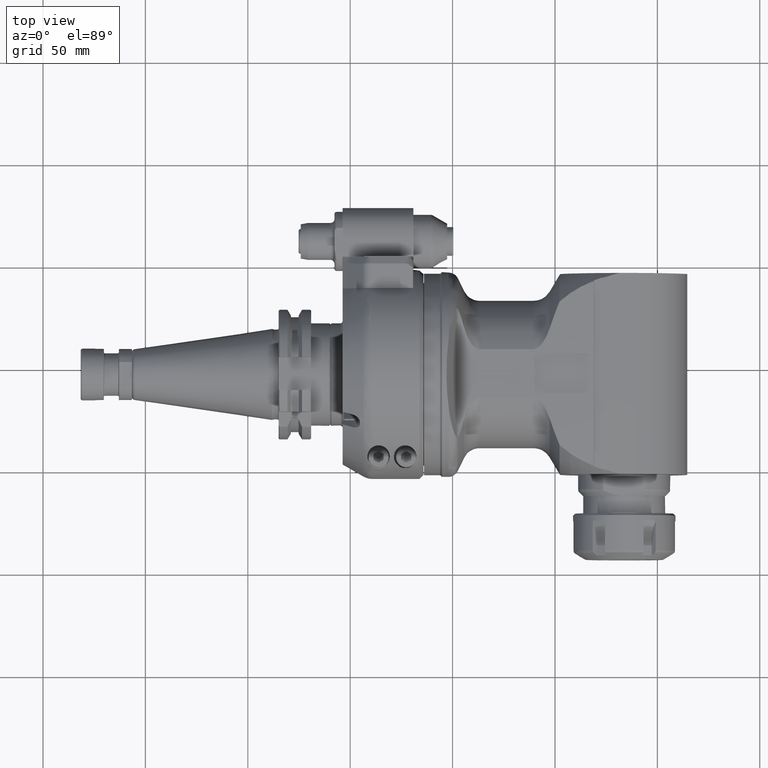
[diagram: clean part render]
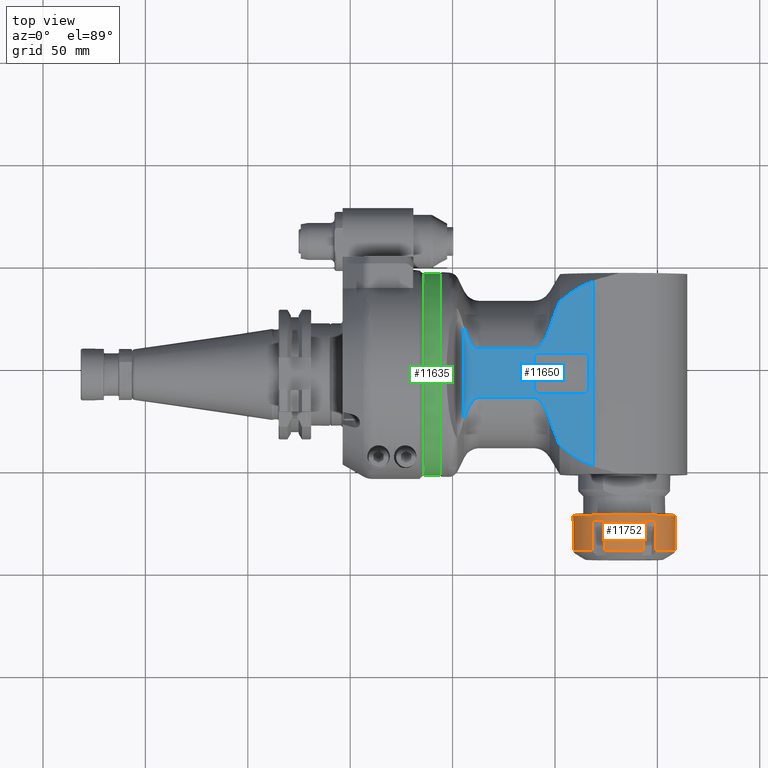
[diagram: same view with three faces highlighted in distinct colors, each labeled with its STEP entity id]
A machine part, top view with three faces highlighted in distinct colors.
Their STEP definitions:

[orange] entity #11752 — the highlighted cylindrical surface (bore or boss wall) has radius 25 mm, axis along (0, -1, -0).
#517=B_SPLINE_CURVE_WITH_KNOTS('',3,(#22286,#22287,#22288,#22289,#22290,
#22291,#22292,#22293,#22294,#22295),.UNSPECIFIED.,.F.,.F.,(4,2,2,2,4),(1.2833686320513,
1.29546874107952,1.61589836926193,1.93632799744434,1.94842810647265),
 .UNSPECIFIED.);
#518=B_SPLINE_CURVE_WITH_KNOTS('',3,(#22303,#22304,#22305,#22306,#22307,
#22308,#22309,#22310,#22311,#22312),.UNSPECIFIED.,.F.,.F.,(4,2,2,2,4),(1.2833686320532,
1.2954687410803,1.61589836926291,1.93632799744552,1.94842810647471),
 .UNSPECIFIED.);
#519=B_SPLINE_CURVE_WITH_KNOTS('',3,(#22320,#22321,#22322,#22323,#22324,
#22325,#22326,#22327,#22328,#22329),.UNSPECIFIED.,.F.,.F.,(4,2,2,2,4),(1.28336863205111,
1.2954687410803,1.61589836926291,1.93632799744551,1.94842810647262),
 .UNSPECIFIED.);
#520=B_SPLINE_CURVE_WITH_KNOTS('',3,(#22337,#22338,#22339,#22340,#22341,
#22342),.UNSPECIFIED.,.F.,.F.,(4,2,4),(-1.94842810647258,-1.93632799744435,
-1.61589836926194),.UNSPECIFIED.);
#521=B_SPLINE_CURVE_WITH_KNOTS('',3,(#22345,#22346,#22347,#22348,#22349,
#22350),.UNSPECIFIED.,.F.,.F.,(4,2,4),(-1.61589836926194,-1.29546874107953,
-1.28336863205122),.UNSPECIFIED.);
#522=B_SPLINE_CURVE_WITH_KNOTS('',3,(#22358,#22359,#22360,#22361,#22362,
#22363,#22364,#22365,#22366,#22367),.UNSPECIFIED.,.F.,.F.,(4,2,2,2,4),(-1.9484281064747,
-1.93632799744552,-1.61589836926291,-1.2954687410803,-1.28336863205338),
 .UNSPECIFIED.);
#523=B_SPLINE_CURVE_WITH_KNOTS('',3,(#22375,#22376,#22377,#22378,#22379,
#22380,#22381,#22382,#22383,#22384),.UNSPECIFIED.,.F.,.F.,(4,2,2,2,4),(-1.94842810647263,
-1.93632799744553,-1.61589836926292,-1.29546874108031,-1.2833686320513),
 .UNSPECIFIED.);
#1156=LINE('',#22297,#2012);
#1157=LINE('',#22301,#2013);
#1158=LINE('',#22314,#2014);
#1159=LINE('',#22318,#2015);
#1160=LINE('',#22331,#2016);
#1161=LINE('',#22335,#2017);
#1162=LINE('',#22343,#2018);
#1163=LINE('',#22352,#2019);
#1164=LINE('',#22356,#2020);
#1165=LINE('',#22369,#2021);
#1166=LINE('',#22373,#2022);
#1167=LINE('',#22386,#2023);
#1168=LINE('',#22389,#2024);
#2012=VECTOR('',#14106,14.29830773003);
#2013=VECTOR('',#14109,14.29830773003);
#2014=VECTOR('',#14110,14.29830773003);
#2015=VECTOR('',#14113,14.29830773003);
#2016=VECTOR('',#14114,14.29830773003);
#2017=VECTOR('',#14117,14.29830773003);
#2018=VECTOR('',#14118,25.);
#2019=VECTOR('',#14119,14.29830773003);
#2020=VECTOR('',#14122,14.29830773003);
#2021=VECTOR('',#14123,14.29830773003);
#2022=VECTOR('',#14126,14.29830773003);
#2023=VECTOR('',#14127,14.29830773003);
#2024=VECTOR('',#14130,14.29830773003);
#2591=CYLINDRICAL_SURFACE('',#12531,25.);
#2853=FACE_OUTER_BOUND('',#3525,.T.);
#3525=EDGE_LOOP('',(#8741,#8742,#8743,#8744,#8745,#8746,#8747,#8748,#8749,
#8750,#8751,#8752,#8753,#8754,#8755,#8756,#8757,#8758,#8759,#8760,#8761,
#8762,#8763,#8764,#8765,#8766,#8767,#8768));
#4190=CIRCLE('',#12530,25.);
#4191=CIRCLE('',#12532,25.);
#4192=CIRCLE('',#12533,25.);
#4193=CIRCLE('',#12534,25.);
#4194=CIRCLE('',#12535,25.);
#4195=CIRCLE('',#12536,25.);
#4196=CIRCLE('',#12537,25.);
#5004=VERTEX_POINT('',#22280);
#5005=VERTEX_POINT('',#22284);
#5006=VERTEX_POINT('',#22285);
#5007=VERTEX_POINT('',#22296);
#5008=VERTEX_POINT('',#22298);
#5009=VERTEX_POINT('',#22300);
#5010=VERTEX_POINT('',#22302);
#5011=VERTEX_POINT('',#22313);
#5012=VERTEX_POINT('',#22315);
#5013=VERTEX_POINT('',#22317);
#5014=VERTEX_POINT('',#22319);
#5015=VERTEX_POINT('',#22330);
#5016=VERTEX_POINT('',#22332);
#5017=VERTEX_POINT('',#22334);
#5018=VERTEX_POINT('',#22336);
#5019=VERTEX_POINT('',#22344);
#5020=VERTEX_POINT('',#22351);
#5021=VERTEX_POINT('',#22353);
#5022=VERTEX_POINT('',#22355);
#5023=VERTEX_POINT('',#22357);
#5024=VERTEX_POINT('',#22368);
#5025=VERTEX_POINT('',#22370);
#5026=VERTEX_POINT('',#22372);
#5027=VERTEX_POINT('',#22374);
#5028=VERTEX_POINT('',#22385);
#5029=VERTEX_POINT('',#22387);
#6381=EDGE_CURVE('',#5004,#5004,#4190,.T.);
#6383=EDGE_CURVE('',#5005,#5006,#517,.T.);
#6384=EDGE_CURVE('',#5005,#5007,#1156,.T.);
#6385=EDGE_CURVE('',#5008,#5007,#4191,.T.);
#6386=EDGE_CURVE('',#5008,#5009,#1157,.T.);
#6387=EDGE_CURVE('',#5010,#5009,#518,.T.);
#6388=EDGE_CURVE('',#5010,#5011,#1158,.T.);
#6389=EDGE_CURVE('',#5012,#5011,#4192,.T.);
#6390=EDGE_CURVE('',#5012,#5013,#1159,.T.);
#6391=EDGE_CURVE('',#5014,#5013,#519,.T.);
#6392=EDGE_CURVE('',#5014,#5015,#1160,.T.);
#6393=EDGE_CURVE('',#5016,#5015,#4193,.T.);
#6394=EDGE_CURVE('',#5016,#5017,#1161,.T.);
#6395=EDGE_CURVE('',#5018,#5017,#520,.F.);
#6396=EDGE_CURVE('',#5018,#5004,#1162,.T.);
#6397=EDGE_CURVE('',#5019,#5018,#521,.F.);
#6398=EDGE_CURVE('',#5019,#5020,#1163,.T.);
#6399=EDGE_CURVE('',#5021,#5020,#4194,.T.);
#6400=EDGE_CURVE('',#5021,#5022,#1164,.T.);
#6401=EDGE_CURVE('',#5022,#5023,#522,.T.);
#6402=EDGE_CURVE('',#5023,#5024,#1165,.T.);
#6403=EDGE_CURVE('',#5025,#5024,#4195,.T.);
#6404=EDGE_CURVE('',#5025,#5026,#1166,.T.);
#6405=EDGE_CURVE('',#5026,#5027,#523,.T.);
#6406=EDGE_CURVE('',#5027,#5028,#1167,.T.);
#6407=EDGE_CURVE('',#5029,#5028,#4196,.T.);
#6408=EDGE_CURVE('',#5029,#5006,#1168,.T.);
#8741=ORIENTED_EDGE('',*,*,#6383,.F.);
#8742=ORIENTED_EDGE('',*,*,#6384,.T.);
#8743=ORIENTED_EDGE('',*,*,#6385,.F.);
#8744=ORIENTED_EDGE('',*,*,#6386,.T.);
#8745=ORIENTED_EDGE('',*,*,#6387,.F.);
#8746=ORIENTED_EDGE('',*,*,#6388,.T.);
#8747=ORIENTED_EDGE('',*,*,#6389,.F.);
#8748=ORIENTED_EDGE('',*,*,#6390,.T.);
#8749=ORIENTED_EDGE('',*,*,#6391,.F.);
#8750=ORIENTED_EDGE('',*,*,#6392,.T.);
#8751=ORIENTED_EDGE('',*,*,#6393,.F.);
#8752=ORIENTED_EDGE('',*,*,#6394,.T.);
#8753=ORIENTED_EDGE('',*,*,#6395,.F.);
#8754=ORIENTED_EDGE('',*,*,#6396,.T.);
#8755=ORIENTED_EDGE('',*,*,#6381,.F.);
#8756=ORIENTED_EDGE('',*,*,#6396,.F.);
#8757=ORIENTED_EDGE('',*,*,#6397,.F.);
#8758=ORIENTED_EDGE('',*,*,#6398,.T.);
#8759=ORIENTED_EDGE('',*,*,#6399,.F.);
#8760=ORIENTED_EDGE('',*,*,#6400,.T.);
#8761=ORIENTED_EDGE('',*,*,#6401,.T.);
#8762=ORIENTED_EDGE('',*,*,#6402,.T.);
#8763=ORIENTED_EDGE('',*,*,#6403,.F.);
#8764=ORIENTED_EDGE('',*,*,#6404,.T.);
#8765=ORIENTED_EDGE('',*,*,#6405,.T.);
#8766=ORIENTED_EDGE('',*,*,#6406,.T.);
#8767=ORIENTED_EDGE('',*,*,#6407,.F.);
#8768=ORIENTED_EDGE('',*,*,#6408,.T.);
#11752=ADVANCED_FACE('',(#2853),#2591,.T.);
#12530=AXIS2_PLACEMENT_3D('',#22281,#14101,#14102);
#12531=AXIS2_PLACEMENT_3D('',#22283,#14104,#14105);
#12532=AXIS2_PLACEMENT_3D('',#22299,#14107,#14108);
#12533=AXIS2_PLACEMENT_3D('',#22316,#14111,#14112);
#12534=AXIS2_PLACEMENT_3D('',#22333,#14115,#14116);
#12535=AXIS2_PLACEMENT_3D('',#22354,#14120,#14121);
#12536=AXIS2_PLACEMENT_3D('',#22371,#14124,#14125);
#12537=AXIS2_PLACEMENT_3D('',#22388,#14128,#14129);
#14101=DIRECTION('center_axis',(0.,1.,0.));
#14102=DIRECTION('ref_axis',(1.,0.,0.));
#14104=DIRECTION('center_axis',(0.,-1.,0.));
#14105=DIRECTION('ref_axis',(-1.,0.,0.));
#14106=DIRECTION('',(2.981651042246E-14,-1.,0.));
#14107=DIRECTION('center_axis',(0.,-1.,0.));
#14108=DIRECTION('ref_axis',(-0.61594757975162,0.,0.787787140665625));
#14109=DIRECTION('',(-1.987767361498E-14,1.,-1.217507508918E-14));
#14110=DIRECTION('',(0.,-1.,-3.677369618771E-14));
#14111=DIRECTION('center_axis',(0.,-1.,0.));
#14112=DIRECTION('ref_axis',(0.37426988671541,0.,0.927319821797223));
#14113=DIRECTION('',(-1.590213889198E-14,1.,1.142966232861E-14));
#14114=DIRECTION('',(-2.782874306096E-14,-1.,-2.782874306096E-14));
#14115=DIRECTION('center_axis',(0.,-1.,0.));
#14116=DIRECTION('ref_axis',(0.99021746646695,0.,0.139532681131607));
#14117=DIRECTION('',(0.,1.,1.745508214315E-14));
#14118=DIRECTION('',(0.,1.,0.));
#14119=DIRECTION('',(-3.577981250697E-14,-1.,4.472476563371E-14));
#14120=DIRECTION('center_axis',(0.,-1.,0.));
#14121=DIRECTION('ref_axis',(0.61594757975162,0.,-0.787787140665625));
#14122=DIRECTION('',(3.180427778397E-14,1.,0.));
#14123=DIRECTION('',(0.,-1.,4.248852735201E-14));
#14124=DIRECTION('center_axis',(0.,-1.,0.));
#14125=DIRECTION('ref_axis',(-0.374269886715289,0.,-0.927319821797272));
#14126=DIRECTION('',(1.590213889198E-14,1.,0.));
#14127=DIRECTION('',(2.782874306097E-14,-1.,2.534403385909E-14));
#14128=DIRECTION('center_axis',(0.,-1.,0.));
#14129=DIRECTION('ref_axis',(-0.99021746646695,0.,-0.139532681131607));
#14130=DIRECTION('',(0.,1.,0.));
#22280=CARTESIAN_POINT('',(303.063097,-69.,-1.680420176007E-14));
#22281=CARTESIAN_POINT('Origin',(278.063097,-69.,-1.214011585688E-14));
#22283=CARTESIAN_POINT('Origin',(278.063097,-77.5,-1.308380542781E-14));
#22284=CARTESIAN_POINT('',(253.3076603383,-71.83566686619,3.48831702829));
#22285=CARTESIAN_POINT('',(253.3076603383,-71.83566686619,-3.488317028291));
#22286=CARTESIAN_POINT('Ctrl Pts',(253.307660338326,-71.8356668661849,3.48831702828736));
#22287=CARTESIAN_POINT('Ctrl Pts',(253.301669607681,-71.8272006773054,3.44580278665227));
#22288=CARTESIAN_POINT('Ctrl Pts',(253.295782864721,-71.8189000400939,3.40323372672939));
#22289=CARTESIAN_POINT('Ctrl Pts',(253.13690397534,-71.595336993535,2.23204483712164));
#22290=CARTESIAN_POINT('Ctrl Pts',(253.063097,-71.5,1.06809876060802));
#22291=CARTESIAN_POINT('Ctrl Pts',(253.063097,-71.5,-1.06809876060804));
#22292=CARTESIAN_POINT('Ctrl Pts',(253.13690397534,-71.595336993535,-2.23204483712166));
#22293=CARTESIAN_POINT('Ctrl Pts',(253.295782864722,-71.8189000400939,-3.40323372672973));
#22294=CARTESIAN_POINT('Ctrl Pts',(253.301669607681,-71.8272006773055,-3.44580278665291));
#22295=CARTESIAN_POINT('Ctrl Pts',(253.307660338326,-71.8356668661851,-3.4883170282883));
#22296=CARTESIAN_POINT('',(253.3076603383,-86.13397459622,3.488317028291));
#22297=CARTESIAN_POINT('',(253.3076603383,-71.83566686618,3.488317028291));
#22298=CARTESIAN_POINT('',(262.6644075062,-86.13397459622,19.69467851664));
#22299=CARTESIAN_POINT('Origin',(278.063097,-86.13397459622,-1.404236916689E-14));
#22300=CARTESIAN_POINT('',(262.6644075062,-71.83566686619,19.69467851664));
#22301=CARTESIAN_POINT('',(262.6644075062,-86.13397459622,19.69467851664));
#22302=CARTESIAN_POINT('',(268.7063498321,-71.83566686619,23.18299554493));
#22303=CARTESIAN_POINT('Ctrl Pts',(268.706349832104,-71.8356668661778,23.1829955449262));
#22304=CARTESIAN_POINT('Ctrl Pts',(268.666536053507,-71.8272006772991,23.166926549036));
#22305=CARTESIAN_POINT('Ctrl Pts',(268.626726794722,-71.8189000400883,23.1507400880245));
#22306=CARTESIAN_POINT('Ctrl Pts',(267.533008019004,-71.5953369935301,22.7027387975508));
#22307=CARTESIAN_POINT('Ctrl Pts',(266.488097660437,-71.4999999999951,22.1846844749151));
#22308=CARTESIAN_POINT('Ctrl Pts',(264.638096339562,-71.4999999999951,21.1165857143063));
#22309=CARTESIAN_POINT('Ctrl Pts',(263.666992956335,-71.5953369935301,20.4706939604277));
#22310=CARTESIAN_POINT('Ctrl Pts',(262.732153069992,-71.8189000400897,19.7475063612923));
#22311=CARTESIAN_POINT('Ctrl Pts',(262.698230554161,-71.8272006773019,19.7211237623803));
#22312=CARTESIAN_POINT('Ctrl Pts',(262.664407506202,-71.8356668661822,19.6946785166348));
#22313=CARTESIAN_POINT('',(268.7063498321,-86.13397459622,23.18299554493));
#22314=CARTESIAN_POINT('',(268.7063498321,-71.83566686619,23.18299554493));
#22315=CARTESIAN_POINT('',(287.4198441679,-86.13397459622,23.18299554493));
#22316=CARTESIAN_POINT('Origin',(278.063097,-86.13397459622,-1.404236916689E-14));
#22317=CARTESIAN_POINT('',(287.4198441679,-71.83566686619,23.18299554493));
#22318=CARTESIAN_POINT('',(287.4198441679,-86.13397459622,23.18299554493));
#22319=CARTESIAN_POINT('',(293.4617864938,-71.83566686619,19.69467851664));
#22320=CARTESIAN_POINT('Ctrl Pts',(293.461786493798,-71.8356668661822,19.6946785166348));
#22321=CARTESIAN_POINT('Ctrl Pts',(293.427963445839,-71.827200677302,19.7211237623803));
#22322=CARTESIAN_POINT('Ctrl Pts',(293.394040930008,-71.8189000400897,19.7475063612923));
#22323=CARTESIAN_POINT('Ctrl Pts',(292.459201043665,-71.5953369935301,20.4706939604277));
#22324=CARTESIAN_POINT('Ctrl Pts',(291.488097660438,-71.4999999999951,21.1165857143063));
#22325=CARTESIAN_POINT('Ctrl Pts',(289.638096339563,-71.4999999999951,22.1846844749151));
#22326=CARTESIAN_POINT('Ctrl Pts',(288.593185980996,-71.5953369935301,22.7027387975508));
#22327=CARTESIAN_POINT('Ctrl Pts',(287.499467205278,-71.8189000400884,23.1507400880245));
#22328=CARTESIAN_POINT('Ctrl Pts',(287.459657946493,-71.8272006772991,23.166926549036));
#22329=CARTESIAN_POINT('Ctrl Pts',(287.419844167896,-71.8356668661778,23.1829955449263));
#22330=CARTESIAN_POINT('',(293.4617864938,-86.13397459622,19.69467851664));
#22331=CARTESIAN_POINT('',(293.4617864938,-71.83566686618,19.69467851664));
#22332=CARTESIAN_POINT('',(302.8185336617,-86.13397459622,3.488317028291));
#22333=CARTESIAN_POINT('Origin',(278.063097,-86.13397459622,-1.404236916689E-14));
#22334=CARTESIAN_POINT('',(302.8185336617,-71.83566686619,3.48831702829));
#22335=CARTESIAN_POINT('',(302.8185336617,-86.13397459622,3.488317028291));
#22336=CARTESIAN_POINT('',(303.063097,-71.5,-1.13948766065655E-14));
#22337=CARTESIAN_POINT('Ctrl Pts',(302.818533661674,-71.8356668661849,3.48831702828738));
#22338=CARTESIAN_POINT('Ctrl Pts',(302.824524392319,-71.8272006773054,3.44580278665229));
#22339=CARTESIAN_POINT('Ctrl Pts',(302.830411135279,-71.8189000400938,3.40323372672941));
#22340=CARTESIAN_POINT('Ctrl Pts',(302.98929002466,-71.5953369935349,2.23204483712165));
#22341=CARTESIAN_POINT('Ctrl Pts',(303.063097,-71.5,1.06809876060802));
#22342=CARTESIAN_POINT('Ctrl Pts',(303.063097,-71.5,-1.22124532708767E-14));
#22343=CARTESIAN_POINT('',(303.063097,-77.5,-1.00221884299416E-14));
#22344=CARTESIAN_POINT('',(302.8185336617,-71.83566686619,-3.488317028291));
#22345=CARTESIAN_POINT('Ctrl Pts',(303.063097,-71.5,-1.30451205393456E-14));
#22346=CARTESIAN_POINT('Ctrl Pts',(303.063097,-71.5,-1.06809876060805));
#22347=CARTESIAN_POINT('Ctrl Pts',(302.98929002466,-71.5953369935349,-2.23204483712168));
#22348=CARTESIAN_POINT('Ctrl Pts',(302.830411135279,-71.8189000400939,-3.40323372672975));
#22349=CARTESIAN_POINT('Ctrl Pts',(302.824524392319,-71.8272006773055,-3.44580278665293));
#22350=CARTESIAN_POINT('Ctrl Pts',(302.818533661674,-71.8356668661851,-3.48831702828833));
#22351=CARTESIAN_POINT('',(302.8185336617,-86.13397459622,-3.488317028291));
#22352=CARTESIAN_POINT('',(302.8185336617,-71.83566686619,-3.488317028291));
#22353=CARTESIAN_POINT('',(293.4617864938,-86.13397459622,-19.69467851664));
#22354=CARTESIAN_POINT('Origin',(278.063097,-86.13397459622,-1.404236916689E-14));
#22355=CARTESIAN_POINT('',(293.4617864938,-71.83566686619,-19.69467851664));
#22356=CARTESIAN_POINT('',(293.4617864938,-86.13397459622,-19.69467851664));
#22357=CARTESIAN_POINT('',(287.4198441679,-71.83566686618,-23.18299554493));
#22358=CARTESIAN_POINT('Ctrl Pts',(293.461786493798,-71.8356668661822,-19.6946785166349));
#22359=CARTESIAN_POINT('Ctrl Pts',(293.427963445839,-71.8272006773019,-19.7211237623804));
#22360=CARTESIAN_POINT('Ctrl Pts',(293.394040930008,-71.8189000400897,-19.7475063612923));
#22361=CARTESIAN_POINT('Ctrl Pts',(292.459201043665,-71.5953369935301,-20.4706939604277));
#22362=CARTESIAN_POINT('Ctrl Pts',(291.488097660438,-71.4999999999951,-21.1165857143064));
#22363=CARTESIAN_POINT('Ctrl Pts',(289.638096339563,-71.4999999999951,-22.1846844749151));
#22364=CARTESIAN_POINT('Ctrl Pts',(288.593185980996,-71.5953369935301,-22.7027387975509));
#22365=CARTESIAN_POINT('Ctrl Pts',(287.499467205278,-71.8189000400882,-23.1507400880243));
#22366=CARTESIAN_POINT('Ctrl Pts',(287.459657946495,-71.8272006772988,-23.1669265490356));
#22367=CARTESIAN_POINT('Ctrl Pts',(287.419844167898,-71.8356668661774,-23.1829955449256));
#22368=CARTESIAN_POINT('',(287.4198441679,-86.13397459622,-23.18299554493));
#22369=CARTESIAN_POINT('',(287.4198441679,-71.83566686618,-23.18299554493));
#22370=CARTESIAN_POINT('',(268.7063498321,-86.13397459622,-23.18299554493));
#22371=CARTESIAN_POINT('Origin',(278.063097,-86.13397459622,-1.404236916689E-14));
#22372=CARTESIAN_POINT('',(268.7063498321,-71.83566686619,-23.18299554493));
#22373=CARTESIAN_POINT('',(268.7063498321,-86.13397459622,-23.18299554493));
#22374=CARTESIAN_POINT('',(262.6644075062,-71.83566686618,-19.69467851664));
#22375=CARTESIAN_POINT('Ctrl Pts',(268.706349832104,-71.8356668661777,-23.1829955449263));
#22376=CARTESIAN_POINT('Ctrl Pts',(268.666536053507,-71.827200677299,-23.1669265490361));
#22377=CARTESIAN_POINT('Ctrl Pts',(268.626726794722,-71.8189000400883,-23.1507400880245));
#22378=CARTESIAN_POINT('Ctrl Pts',(267.533008019004,-71.59533699353,-22.7027387975509));
#22379=CARTESIAN_POINT('Ctrl Pts',(266.488097660437,-71.4999999999951,-22.1846844749151));
#22380=CARTESIAN_POINT('Ctrl Pts',(264.638096339562,-71.4999999999951,-21.1165857143064));
#22381=CARTESIAN_POINT('Ctrl Pts',(263.666992956335,-71.59533699353,-20.4706939604278));
#22382=CARTESIAN_POINT('Ctrl Pts',(262.732153069993,-71.8189000400895,-19.7475063612927));
#22383=CARTESIAN_POINT('Ctrl Pts',(262.698230554162,-71.8272006773017,-19.7211237623811));
#22384=CARTESIAN_POINT('Ctrl Pts',(262.664407506204,-71.8356668661818,-19.694678516636));
#22385=CARTESIAN_POINT('',(262.6644075062,-86.13397459622,-19.69467851664));
#22386=CARTESIAN_POINT('',(262.6644075062,-71.83566686618,-19.69467851664));
#22387=CARTESIAN_POINT('',(253.3076603383,-86.13397459622,-3.488317028291));
#22388=CARTESIAN_POINT('Origin',(278.063097,-86.13397459622,-1.404236916689E-14));
#22389=CARTESIAN_POINT('',(253.3076603383,-86.13397459622,-3.488317028291));

[blue] entity #11650 — the highlighted planar face has unit normal (-0, 0, -1).
#255=(
BOUNDED_CURVE()
B_SPLINE_CURVE(2,(#16769,#16770,#16771),.UNSPECIFIED.,.F.,.F.)
B_SPLINE_CURVE_WITH_KNOTS((3,3),(-7.0566883781188,-6.95774973782874),
 .UNSPECIFIED.)
CURVE()
GEOMETRIC_REPRESENTATION_ITEM()
RATIONAL_B_SPLINE_CURVE((1.00375094347923,1.00425302240949,1.00474028515135))
REPRESENTATION_ITEM('')
);
#256=(
BOUNDED_CURVE()
B_SPLINE_CURVE(2,(#16776,#16777,#16778),.UNSPECIFIED.,.F.,.F.)
B_SPLINE_CURVE_WITH_KNOTS((3,3),(6.16316429996222,6.1904248157078),
 .UNSPECIFIED.)
CURVE()
GEOMETRIC_REPRESENTATION_ITEM()
RATIONAL_B_SPLINE_CURVE((1.11577564848434,1.11460476666033,1.11342126184614))
REPRESENTATION_ITEM('')
);
#257=(
BOUNDED_CURVE()
B_SPLINE_CURVE(2,(#16791,#16792,#16793),.UNSPECIFIED.,.F.,.F.)
B_SPLINE_CURVE_WITH_KNOTS((3,3),(2.5215742486305,4.06301752668661),
 .UNSPECIFIED.)
CURVE()
GEOMETRIC_REPRESENTATION_ITEM()
RATIONAL_B_SPLINE_CURVE((1.36765630309663,1.4577699631041,1.52066742170751))
REPRESENTATION_ITEM('')
);
#258=(
BOUNDED_CURVE()
B_SPLINE_CURVE(2,(#16795,#16796,#16797),.UNSPECIFIED.,.F.,.F.)
B_SPLINE_CURVE_WITH_KNOTS((3,3),(0.775030712287538,1.18947311921431),
 .UNSPECIFIED.)
CURVE()
GEOMETRIC_REPRESENTATION_ITEM()
RATIONAL_B_SPLINE_CURVE((1.08266443650082,1.10336027159058,1.12255210103294))
REPRESENTATION_ITEM('')
);
#259=(
BOUNDED_CURVE()
B_SPLINE_CURVE(2,(#16799,#16800,#16801),.UNSPECIFIED.,.F.,.F.)
B_SPLINE_CURVE_WITH_KNOTS((3,3),(0.39307773059177,0.696187792189114),
 .UNSPECIFIED.)
CURVE()
GEOMETRIC_REPRESENTATION_ITEM()
RATIONAL_B_SPLINE_CURVE((1.03857172074225,1.05300594660315,1.06676546580063))
REPRESENTATION_ITEM('')
);
#260=(
BOUNDED_CURVE()
B_SPLINE_CURVE(2,(#16802,#16803,#16804),.UNSPECIFIED.,.F.,.F.)
B_SPLINE_CURVE_WITH_KNOTS((3,3),(0.107918262111207,0.355594283058807),
 .UNSPECIFIED.)
CURVE()
GEOMETRIC_REPRESENTATION_ITEM()
RATIONAL_B_SPLINE_CURVE((1.00928612455467,1.01986753373372,1.03010664309034))
REPRESENTATION_ITEM('')
);
#261=(
BOUNDED_CURVE()
B_SPLINE_CURVE(2,(#16808,#16809,#16810),.UNSPECIFIED.,.F.,.F.)
B_SPLINE_CURVE_WITH_KNOTS((3,3),(6.95803843825647,7.05698155652156),
 .UNSPECIFIED.)
CURVE()
GEOMETRIC_REPRESENTATION_ITEM()
RATIONAL_B_SPLINE_CURVE((1.00474774792588,1.00426053459943,1.0037585049215))
REPRESENTATION_ITEM('')
);
#262=(
BOUNDED_CURVE()
B_SPLINE_CURVE(2,(#16812,#16813,#16814),.UNSPECIFIED.,.F.,.F.)
B_SPLINE_CURVE_WITH_KNOTS((3,3),(15.1725118771044,15.4201832348913),
 .UNSPECIFIED.)
CURVE()
GEOMETRIC_REPRESENTATION_ITEM()
RATIONAL_B_SPLINE_CURVE((1.03009681742218,1.01985780573126,1.00927649748294))
REPRESENTATION_ITEM('')
);
#263=(
BOUNDED_CURVE()
B_SPLINE_CURVE(2,(#16816,#16817,#16818),.UNSPECIFIED.,.F.,.F.)
B_SPLINE_CURVE_WITH_KNOTS((3,3),(13.0586360691569,13.3617396590739),
 .UNSPECIFIED.)
CURVE()
GEOMETRIC_REPRESENTATION_ITEM()
RATIONAL_B_SPLINE_CURVE((1.06675254216696,1.0529931866809,1.03855913239331))
REPRESENTATION_ITEM('')
);
#264=(
BOUNDED_CURVE()
B_SPLINE_CURVE(2,(#16820,#16821,#16822),.UNSPECIFIED.,.F.,.F.)
B_SPLINE_CURVE_WITH_KNOTS((3,3),(11.7660287057255,12.1804611856225),
 .UNSPECIFIED.)
CURVE()
GEOMETRIC_REPRESENTATION_ITEM()
RATIONAL_B_SPLINE_CURVE((1.12253550208667,1.10334395998691,1.08264843503662))
REPRESENTATION_ITEM('')
);
#265=(
BOUNDED_CURVE()
B_SPLINE_CURVE(2,(#16824,#16825,#16826),.UNSPECIFIED.,.F.,.F.)
B_SPLINE_CURVE_WITH_KNOTS((3,3),(11.1870091814929,12.7283913806283),
 .UNSPECIFIED.)
CURVE()
GEOMETRIC_REPRESENTATION_ITEM()
RATIONAL_B_SPLINE_CURVE((1.5206120536593,1.45771688517508,1.36760650623862))
REPRESENTATION_ITEM('')
);
#266=(
BOUNDED_CURVE()
B_SPLINE_CURVE(2,(#16854,#16855,#16856),.UNSPECIFIED.,.F.,.F.)
B_SPLINE_CURVE_WITH_KNOTS((3,3),(1.07864842205667,1.10590893779562),
 .UNSPECIFIED.)
CURVE()
GEOMETRIC_REPRESENTATION_ITEM()
RATIONAL_B_SPLINE_CURVE((1.11342126175273,1.11460476656667,1.11577564839043))
REPRESENTATION_ITEM('')
);
#411=B_SPLINE_CURVE_WITH_KNOTS('',3,(#16490,#16491,#16492,#16493,#16494,
#16495,#16496,#16497,#16498,#16499,#16500,#16501),.UNSPECIFIED.,.F.,.F.,
(4,2,2,2,2,4),(3.26256449606922,3.35979196488696,3.48380316096739,3.90334505683776,
4.48575870420334,4.52060177296934),.UNSPECIFIED.);
#423=B_SPLINE_CURVE_WITH_KNOTS('',3,(#16780,#16781,#16782,#16783,#16784,
#16785,#16786,#16787,#16788,#16789),.UNSPECIFIED.,.F.,.F.,(4,2,2,2,4),(3.59989156653281,
3.70972363098961,3.85021130199602,4.32170904660402,4.87230947984852),
 .UNSPECIFIED.);
#424=B_SPLINE_CURVE_WITH_KNOTS('',3,(#16828,#16829,#16830,#16831,#16832,
#16833,#16834,#16835,#16836,#16837),.UNSPECIFIED.,.F.,.F.,(4,2,2,2,4),(2.32747365321535,
2.87807408645728,3.34957183106157,3.49005950206689,3.59989156652281),
 .UNSPECIFIED.);
#425=B_SPLINE_CURVE_WITH_KNOTS('',3,(#16841,#16842,#16843,#16844,#16845,
#16846,#16847,#16848,#16849,#16850,#16851,#16852),.UNSPECIFIED.,.F.,.F.,
(4,2,2,2,2,4),(-4.52060177296844,-4.48575870420334,-3.90334505683776,-3.48380316096739,
-3.35979196488696,-3.26256449606922),.UNSPECIFIED.);
#763=FACE_BOUND('',#3406,.T.);
#877=LINE('',#16487,#1733);
#893=LINE('',#16806,#1749);
#894=LINE('',#16839,#1750);
#895=LINE('',#16857,#1751);
#896=LINE('',#16860,#1752);
#897=LINE('',#16864,#1753);
#898=LINE('',#16868,#1754);
#899=LINE('',#16872,#1755);
#1733=VECTOR('',#13477,26.67897826015);
#1749=VECTOR('',#13557,10.);
#1750=VECTOR('',#13558,26.67897826021);
#1751=VECTOR('',#13559,45.02224602415);
#1752=VECTOR('',#13560,15.5);
#1753=VECTOR('',#13563,22.5);
#1754=VECTOR('',#13566,15.5);
#1755=VECTOR('',#13569,22.5);
#2751=FACE_OUTER_BOUND('',#3405,.T.);
#3405=EDGE_LOOP('',(#7825,#7826,#7827,#7828,#7829,#7830,#7831,#7832,#7833,
#7834,#7835,#7836,#7837,#7838,#7839,#7840,#7841,#7842,#7843,#7844));
#3406=EDGE_LOOP('',(#7845,#7846,#7847,#7848,#7849,#7850,#7851,#7852));
#4131=CIRCLE('',#12389,2.);
#4132=CIRCLE('',#12390,2.);
#4133=CIRCLE('',#12391,2.);
#4134=CIRCLE('',#12392,2.);
#4586=VERTEX_POINT('',#16481);
#4588=VERTEX_POINT('',#16485);
#4589=VERTEX_POINT('',#16489);
#4650=VERTEX_POINT('',#16767);
#4651=VERTEX_POINT('',#16768);
#4652=VERTEX_POINT('',#16775);
#4653=VERTEX_POINT('',#16779);
#4654=VERTEX_POINT('',#16790);
#4655=VERTEX_POINT('',#16794);
#4656=VERTEX_POINT('',#16798);
#4657=VERTEX_POINT('',#16805);
#4658=VERTEX_POINT('',#16807);
#4659=VERTEX_POINT('',#16811);
#4660=VERTEX_POINT('',#16815);
#4661=VERTEX_POINT('',#16819);
#4662=VERTEX_POINT('',#16823);
#4663=VERTEX_POINT('',#16827);
#4664=VERTEX_POINT('',#16838);
#4665=VERTEX_POINT('',#16840);
#4666=VERTEX_POINT('',#16853);
#4667=VERTEX_POINT('',#16858);
#4668=VERTEX_POINT('',#16859);
#4669=VERTEX_POINT('',#16861);
#4670=VERTEX_POINT('',#16863);
#4671=VERTEX_POINT('',#16865);
#4672=VERTEX_POINT('',#16867);
#4673=VERTEX_POINT('',#16869);
#4674=VERTEX_POINT('',#16871);
#5870=EDGE_CURVE('',#4588,#4586,#877,.T.);
#5871=EDGE_CURVE('',#4586,#4589,#411,.T.);
#5943=EDGE_CURVE('',#4650,#4651,#255,.T.);
#5946=EDGE_CURVE('',#4589,#4652,#256,.T.);
#5947=EDGE_CURVE('',#4588,#4653,#423,.T.);
#5948=EDGE_CURVE('',#4654,#4653,#257,.T.);
#5949=EDGE_CURVE('',#4655,#4654,#258,.T.);
#5950=EDGE_CURVE('',#4656,#4655,#259,.T.);
#5951=EDGE_CURVE('',#4651,#4656,#260,.T.);
#5952=EDGE_CURVE('',#4657,#4650,#893,.T.);
#5953=EDGE_CURVE('',#4658,#4657,#261,.T.);
#5954=EDGE_CURVE('',#4659,#4658,#262,.T.);
#5955=EDGE_CURVE('',#4660,#4659,#263,.T.);
#5956=EDGE_CURVE('',#4661,#4660,#264,.T.);
#5957=EDGE_CURVE('',#4662,#4661,#265,.T.);
#5958=EDGE_CURVE('',#4662,#4663,#424,.T.);
#5959=EDGE_CURVE('',#4664,#4663,#894,.T.);
#5960=EDGE_CURVE('',#4665,#4664,#425,.T.);
#5961=EDGE_CURVE('',#4666,#4665,#266,.T.);
#5962=EDGE_CURVE('',#4652,#4666,#895,.T.);
#5963=EDGE_CURVE('',#4667,#4668,#896,.T.);
#5964=EDGE_CURVE('',#4668,#4669,#4131,.T.);
#5965=EDGE_CURVE('',#4669,#4670,#897,.T.);
#5966=EDGE_CURVE('',#4670,#4671,#4132,.T.);
#5967=EDGE_CURVE('',#4671,#4672,#898,.T.);
#5968=EDGE_CURVE('',#4672,#4673,#4133,.T.);
#5969=EDGE_CURVE('',#4673,#4674,#899,.T.);
#5970=EDGE_CURVE('',#4674,#4667,#4134,.T.);
#7825=ORIENTED_EDGE('',*,*,#5946,.F.);
#7826=ORIENTED_EDGE('',*,*,#5871,.F.);
#7827=ORIENTED_EDGE('',*,*,#5870,.F.);
#7828=ORIENTED_EDGE('',*,*,#5947,.T.);
#7829=ORIENTED_EDGE('',*,*,#5948,.F.);
#7830=ORIENTED_EDGE('',*,*,#5949,.F.);
#7831=ORIENTED_EDGE('',*,*,#5950,.F.);
#7832=ORIENTED_EDGE('',*,*,#5951,.F.);
#7833=ORIENTED_EDGE('',*,*,#5943,.F.);
#7834=ORIENTED_EDGE('',*,*,#5952,.F.);
#7835=ORIENTED_EDGE('',*,*,#5953,.F.);
#7836=ORIENTED_EDGE('',*,*,#5954,.F.);
#7837=ORIENTED_EDGE('',*,*,#5955,.F.);
#7838=ORIENTED_EDGE('',*,*,#5956,.F.);
#7839=ORIENTED_EDGE('',*,*,#5957,.F.);
#7840=ORIENTED_EDGE('',*,*,#5958,.T.);
#7841=ORIENTED_EDGE('',*,*,#5959,.F.);
#7842=ORIENTED_EDGE('',*,*,#5960,.F.);
#7843=ORIENTED_EDGE('',*,*,#5961,.F.);
#7844=ORIENTED_EDGE('',*,*,#5962,.F.);
#7845=ORIENTED_EDGE('',*,*,#5963,.T.);
#7846=ORIENTED_EDGE('',*,*,#5964,.T.);
#7847=ORIENTED_EDGE('',*,*,#5965,.T.);
#7848=ORIENTED_EDGE('',*,*,#5966,.T.);
#7849=ORIENTED_EDGE('',*,*,#5967,.T.);
#7850=ORIENTED_EDGE('',*,*,#5968,.T.);
#7851=ORIENTED_EDGE('',*,*,#5969,.T.);
#7852=ORIENTED_EDGE('',*,*,#5970,.T.);
#11360=PLANE('',#12388);
#11650=ADVANCED_FACE('',(#2751,#763),#11360,.F.);
#12388=AXIS2_PLACEMENT_3D('',#16774,#13555,#13556);
#12389=AXIS2_PLACEMENT_3D('',#16862,#13561,#13562);
#12390=AXIS2_PLACEMENT_3D('',#16866,#13564,#13565);
#12391=AXIS2_PLACEMENT_3D('',#16870,#13567,#13568);
#12392=AXIS2_PLACEMENT_3D('',#16873,#13570,#13571);
#13477=DIRECTION('',(-1.,0.,0.));
#13555=DIRECTION('center_axis',(0.,0.,-1.));
#13556=DIRECTION('ref_axis',(-1.,0.,0.));
#13557=DIRECTION('',(0.,-1.,0.));
#13558=DIRECTION('',(1.,0.,0.));
#13559=DIRECTION('',(0.,1.,0.));
#13560=DIRECTION('',(0.,-1.,0.));
#13561=DIRECTION('center_axis',(0.,0.,-1.));
#13562=DIRECTION('ref_axis',(1.,0.,0.));
#13563=DIRECTION('',(-1.,0.,0.));
#13564=DIRECTION('center_axis',(0.,0.,-1.));
#13565=DIRECTION('ref_axis',(0.,-1.,0.));
#13566=DIRECTION('',(0.,1.,0.));
#13567=DIRECTION('center_axis',(0.,0.,-1.));
#13568=DIRECTION('ref_axis',(-1.,0.,0.));
#13569=DIRECTION('',(1.,0.,0.));
#13570=DIRECTION('center_axis',(0.,0.,-1.));
#13571=DIRECTION('ref_axis',(0.,1.,0.));
#16481=CARTESIAN_POINT('',(207.1879662404,-11.8321595662,34.));
#16485=CARTESIAN_POINT('',(233.8669445005,-11.8321595662,34.));
#16487=CARTESIAN_POINT('',(233.8669445005,-11.8321595662,34.));
#16489=CARTESIAN_POINT('',(199.9375039441,-22.22403069258,34.));
#16490=CARTESIAN_POINT('Ctrl Pts',(207.1879662404,-11.8321595661992,34.));
#16491=CARTESIAN_POINT('Ctrl Pts',(206.863874677674,-11.8321595661992,34.));
#16492=CARTESIAN_POINT('Ctrl Pts',(206.48271510493,-11.9094141530462,34.));
#16493=CARTESIAN_POINT('Ctrl Pts',(205.793568991128,-12.1719558722867,34.));
#16494=CARTESIAN_POINT('Ctrl Pts',(205.372427555173,-12.4340633292095,34.));
#16495=CARTESIAN_POINT('Ctrl Pts',(203.953201733516,-13.5603738735786,34.));
#16496=CARTESIAN_POINT('Ctrl Pts',(203.008613998233,-14.9474573060366,34.));
#16497=CARTESIAN_POINT('Ctrl Pts',(201.374850143006,-17.860432723607,34.));
#16498=CARTESIAN_POINT('Ctrl Pts',(200.582986316568,-19.8279709388041,34.));
#16499=CARTESIAN_POINT('Ctrl Pts',(200.000606743342,-21.9803869181482,34.));
#16500=CARTESIAN_POINT('Ctrl Pts',(199.968608168858,-22.1021166285149,34.));
#16501=CARTESIAN_POINT('Ctrl Pts',(199.937503944106,-22.2240306925814,34.));
#16767=CARTESIAN_POINT('',(263.053097479116,-44.9805368840876,33.9999997132387));
#16768=CARTESIAN_POINT('',(261.7592494227,-44.54518184073,34.));
#16769=CARTESIAN_POINT('Ctrl Pts',(263.053097670176,-44.9805363271857,34.));
#16770=CARTESIAN_POINT('Ctrl Pts',(262.403027620066,-44.7621878193078,34.));
#16771=CARTESIAN_POINT('Ctrl Pts',(261.759249422742,-44.5451818407373,34.));
#16774=CARTESIAN_POINT('Origin',(238.1030186341,-45.,34.));
#16775=CARTESIAN_POINT('',(199.8639272009,-22.51112301208,34.));
#16776=CARTESIAN_POINT('Ctrl Pts',(199.937503944274,-22.2240306919466,34.));
#16777=CARTESIAN_POINT('Ctrl Pts',(199.900951665729,-22.3672985876735,34.));
#16778=CARTESIAN_POINT('Ctrl Pts',(199.863927201081,-22.5111230114919,34.));
#16779=CARTESIAN_POINT('',(241.6611731346,-22.00568108465,34.));
#16780=CARTESIAN_POINT('Ctrl Pts',(233.8669445005,-11.8321595661992,34.));
#16781=CARTESIAN_POINT('Ctrl Pts',(234.233051382023,-11.8321595661992,34.));
#16782=CARTESIAN_POINT('Ctrl Pts',(234.663546023659,-11.9198161783188,34.));
#16783=CARTESIAN_POINT('Ctrl Pts',(235.443066222336,-12.2174235510846,34.));
#16784=CARTESIAN_POINT('Ctrl Pts',(235.920003028459,-12.5146101157905,34.));
#16785=CARTESIAN_POINT('Ctrl Pts',(237.519070508123,-13.7812532581952,34.));
#16786=CARTESIAN_POINT('Ctrl Pts',(238.591879803817,-15.3323954779161,34.));
#16787=CARTESIAN_POINT('Ctrl Pts',(240.279862271908,-18.2918418451289,34.));
#16788=CARTESIAN_POINT('Ctrl Pts',(241.066668194062,-20.1105628780334,34.));
#16789=CARTESIAN_POINT('Ctrl Pts',(241.661173134559,-22.0056810846628,34.));
#16790=CARTESIAN_POINT('',(246.4733509227,-35.05497133849,34.));
#16791=CARTESIAN_POINT('Ctrl Pts',(246.473350922763,-35.0549713387466,34.));
#16792=CARTESIAN_POINT('Ctrl Pts',(243.517009779118,-27.921577781361,34.));
#16793=CARTESIAN_POINT('Ctrl Pts',(241.661173134554,-22.0056810846926,34.));
#16794=CARTESIAN_POINT('',(251.759250416998,-39.194834325068,33.9999997228893));
#16795=CARTESIAN_POINT('Ctrl Pts',(251.759250499231,-39.1948342225807,34.));
#16796=CARTESIAN_POINT('Ctrl Pts',(248.968940732709,-37.0621849185798,34.));
#16797=CARTESIAN_POINT('Ctrl Pts',(246.473350922697,-35.0549713384935,34.));
#16798=CARTESIAN_POINT('',(256.759249426142,-42.2329602483583,33.9999999992183));
#16799=CARTESIAN_POINT('Ctrl Pts',(256.759249426316,-42.2329602480682,34.));
#16800=CARTESIAN_POINT('Ctrl Pts',(254.165973320667,-40.68051748898,34.));
#16801=CARTESIAN_POINT('Ctrl Pts',(251.75925055859,-39.1948341009734,34.));
#16802=CARTESIAN_POINT('Ctrl Pts',(261.759249422701,-44.5451818407277,34.));
#16803=CARTESIAN_POINT('Ctrl Pts',(259.192636406154,-43.3699887142369,34.));
#16804=CARTESIAN_POINT('Ctrl Pts',(256.759249426468,-42.2329602476605,34.));
#16805=CARTESIAN_POINT('',(263.053097479116,44.9805368840876,33.9999997132387));
#16806=CARTESIAN_POINT('',(263.0530967692,-22.5000000000001,34.));
#16807=CARTESIAN_POINT('',(261.7592494227,44.54518184073,34.));
#16808=CARTESIAN_POINT('Ctrl Pts',(261.759249422718,44.5451818407291,34.));
#16809=CARTESIAN_POINT('Ctrl Pts',(262.403027620054,44.7621878193036,34.));
#16810=CARTESIAN_POINT('Ctrl Pts',(263.053097670176,44.9805363271856,34.));
#16811=CARTESIAN_POINT('',(256.759249426142,42.2329602483584,33.9999999992183));
#16812=CARTESIAN_POINT('Ctrl Pts',(256.759249426468,42.2329602476606,34.));
#16813=CARTESIAN_POINT('Ctrl Pts',(259.192636406154,43.3699887142369,34.));
#16814=CARTESIAN_POINT('Ctrl Pts',(261.759249422701,44.5451818407277,34.));
#16815=CARTESIAN_POINT('',(251.759249442687,39.1948334183914,33.9999999944173));
#16816=CARTESIAN_POINT('Ctrl Pts',(251.759249445491,39.1948334138513,34.));
#16817=CARTESIAN_POINT('Ctrl Pts',(254.165972721469,40.6805171302754,34.));
#16818=CARTESIAN_POINT('Ctrl Pts',(256.759249426316,42.2329602480683,34.));
#16819=CARTESIAN_POINT('',(246.473350922444,35.0549713383488,34.0000000000025));
#16820=CARTESIAN_POINT('Ctrl Pts',(246.473350921874,35.0549713378312,34.));
#16821=CARTESIAN_POINT('Ctrl Pts',(248.968940261291,37.062184539435,34.));
#16822=CARTESIAN_POINT('Ctrl Pts',(251.759249444296,39.1948334162878,34.));
#16823=CARTESIAN_POINT('',(241.6611731346,22.00568108467,34.));
#16824=CARTESIAN_POINT('Ctrl Pts',(241.661173134559,22.0056810847107,34.));
#16825=CARTESIAN_POINT('Ctrl Pts',(243.517009779122,27.9215777813681,34.));
#16826=CARTESIAN_POINT('Ctrl Pts',(246.47335092276,35.0549713387377,34.));
#16827=CARTESIAN_POINT('',(233.8669445006,11.8321595662,34.));
#16828=CARTESIAN_POINT('Ctrl Pts',(241.661173134565,22.005681084681,34.));
#16829=CARTESIAN_POINT('Ctrl Pts',(241.066668194067,20.1105628780451,34.));
#16830=CARTESIAN_POINT('Ctrl Pts',(240.279862271911,18.291841845134,34.));
#16831=CARTESIAN_POINT('Ctrl Pts',(238.591879803817,15.3323954779161,34.));
#16832=CARTESIAN_POINT('Ctrl Pts',(237.519070508123,13.7812532581953,34.));
#16833=CARTESIAN_POINT('Ctrl Pts',(235.920003028459,12.5146101157905,34.));
#16834=CARTESIAN_POINT('Ctrl Pts',(235.443066222336,12.2174235510846,34.));
#16835=CARTESIAN_POINT('Ctrl Pts',(234.663546023658,11.9198161783188,34.));
#16836=CARTESIAN_POINT('Ctrl Pts',(234.233051382023,11.8321595661992,34.));
#16837=CARTESIAN_POINT('Ctrl Pts',(233.8669445005,11.8321595661992,34.));
#16838=CARTESIAN_POINT('',(207.1879662404,11.8321595662,34.));
#16839=CARTESIAN_POINT('',(207.1879662404,11.8321595662,34.));
#16840=CARTESIAN_POINT('',(199.9375039441,22.22403069257,34.));
#16841=CARTESIAN_POINT('Ctrl Pts',(199.937503944108,22.224030692572,34.));
#16842=CARTESIAN_POINT('Ctrl Pts',(199.968608168859,22.1021166285086,34.));
#16843=CARTESIAN_POINT('Ctrl Pts',(200.000606743343,21.9803869181451,34.));
#16844=CARTESIAN_POINT('Ctrl Pts',(200.582986316568,19.8279709388041,34.));
#16845=CARTESIAN_POINT('Ctrl Pts',(201.374850143006,17.860432723607,34.));
#16846=CARTESIAN_POINT('Ctrl Pts',(203.008613998233,14.9474573060366,34.));
#16847=CARTESIAN_POINT('Ctrl Pts',(203.953201733516,13.5603738735786,34.));
#16848=CARTESIAN_POINT('Ctrl Pts',(205.372427555173,12.4340633292095,34.));
#16849=CARTESIAN_POINT('Ctrl Pts',(205.793568991128,12.1719558722867,34.));
#16850=CARTESIAN_POINT('Ctrl Pts',(206.48271510493,11.9094141530462,34.));
#16851=CARTESIAN_POINT('Ctrl Pts',(206.863874677674,11.8321595661992,34.));
#16852=CARTESIAN_POINT('Ctrl Pts',(207.1879662404,11.8321595661992,34.));
#16853=CARTESIAN_POINT('',(199.8639272009,22.51112301207,34.));
#16854=CARTESIAN_POINT('Ctrl Pts',(199.86392720093,22.5111230120776,34.));
#16855=CARTESIAN_POINT('Ctrl Pts',(199.900951665573,22.3672985882799,34.));
#16856=CARTESIAN_POINT('Ctrl Pts',(199.937503944114,22.2240306925737,34.));
#16857=CARTESIAN_POINT('',(199.8639272009,-22.51112301208,34.));
#16858=CARTESIAN_POINT('',(260.8130969851,7.75,34.));
#16859=CARTESIAN_POINT('',(260.8130969851,-7.75,34.));
#16860=CARTESIAN_POINT('',(260.8130969851,7.75,34.));
#16861=CARTESIAN_POINT('',(258.8130969851,-9.75,34.));
#16862=CARTESIAN_POINT('Origin',(258.8130969851,-7.75,34.));
#16863=CARTESIAN_POINT('',(236.3130969851,-9.75,34.));
#16864=CARTESIAN_POINT('',(258.8130969851,-9.75,34.));
#16865=CARTESIAN_POINT('',(234.3130969851,-7.75,34.));
#16866=CARTESIAN_POINT('Origin',(236.3130969851,-7.75,34.));
#16867=CARTESIAN_POINT('',(234.3130969851,7.75,34.));
#16868=CARTESIAN_POINT('',(234.3130969851,-7.75,34.));
#16869=CARTESIAN_POINT('',(236.3130969851,9.75,34.));
#16870=CARTESIAN_POINT('Origin',(236.3130969851,7.75,34.));
#16871=CARTESIAN_POINT('',(258.8130969851,9.75,34.));
#16872=CARTESIAN_POINT('',(236.3130969851,9.75,34.));
#16873=CARTESIAN_POINT('Origin',(258.8130969851,7.75,34.));

[green] entity #11635 — the highlighted cylindrical surface (bore or boss wall) has radius 49.2 mm, axis along (1, 0, -0).
#875=LINE('',#16476,#1731);
#1731=VECTOR('',#13465,49.2);
#2575=CYLINDRICAL_SURFACE('',#12351,49.2);
#2736=FACE_OUTER_BOUND('',#3386,.T.);
#3386=EDGE_LOOP('',(#7715,#7716,#7717,#7718));
#4113=CIRCLE('',#12350,49.2);
#4114=CIRCLE('',#12352,49.2);
#4583=VERTEX_POINT('',#16472);
#4584=VERTEX_POINT('',#16475);
#5864=EDGE_CURVE('',#4583,#4583,#4113,.T.);
#5865=EDGE_CURVE('',#4583,#4584,#875,.T.);
#5866=EDGE_CURVE('',#4584,#4584,#4114,.T.);
#7715=ORIENTED_EDGE('',*,*,#5864,.F.);
#7716=ORIENTED_EDGE('',*,*,#5865,.T.);
#7717=ORIENTED_EDGE('',*,*,#5866,.T.);
#7718=ORIENTED_EDGE('',*,*,#5865,.F.);
#11635=ADVANCED_FACE('',(#2736),#2575,.T.);
#12350=AXIS2_PLACEMENT_3D('',#16473,#13461,#13462);
#12351=AXIS2_PLACEMENT_3D('',#16474,#13463,#13464);
#12352=AXIS2_PLACEMENT_3D('',#16477,#13466,#13467);
#13461=DIRECTION('center_axis',(1.,0.,0.));
#13462=DIRECTION('ref_axis',(0.,1.,0.));
#13463=DIRECTION('center_axis',(1.,0.,0.));
#13464=DIRECTION('ref_axis',(0.,-1.,0.));
#13465=DIRECTION('',(-1.,0.,0.));
#13466=DIRECTION('center_axis',(1.,0.,0.));
#13467=DIRECTION('ref_axis',(0.,1.,0.));
#16472=CARTESIAN_POINT('',(188.063097,49.2,6.02526225180498E-15));
#16473=CARTESIAN_POINT('Origin',(188.063097,0.,0.));
#16474=CARTESIAN_POINT('Origin',(-90.64014792228,0.,0.));
#16475=CARTESIAN_POINT('',(180.263097,49.2,6.02526225180498E-15));
#16476=CARTESIAN_POINT('',(-90.64014792228,49.2,6.02526225180498E-15));
#16477=CARTESIAN_POINT('Origin',(180.263097,0.,0.));